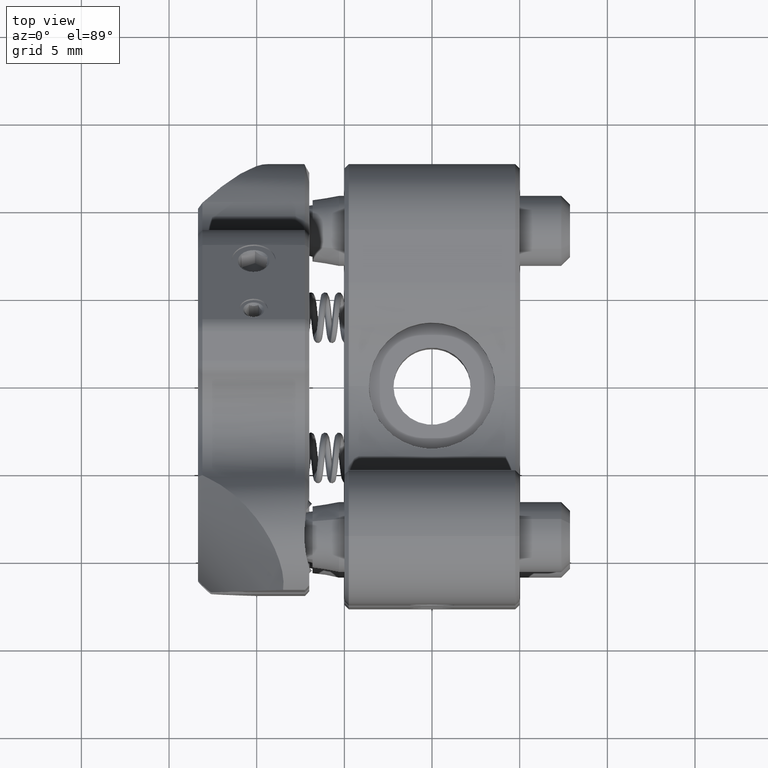
[diagram: clean part render]
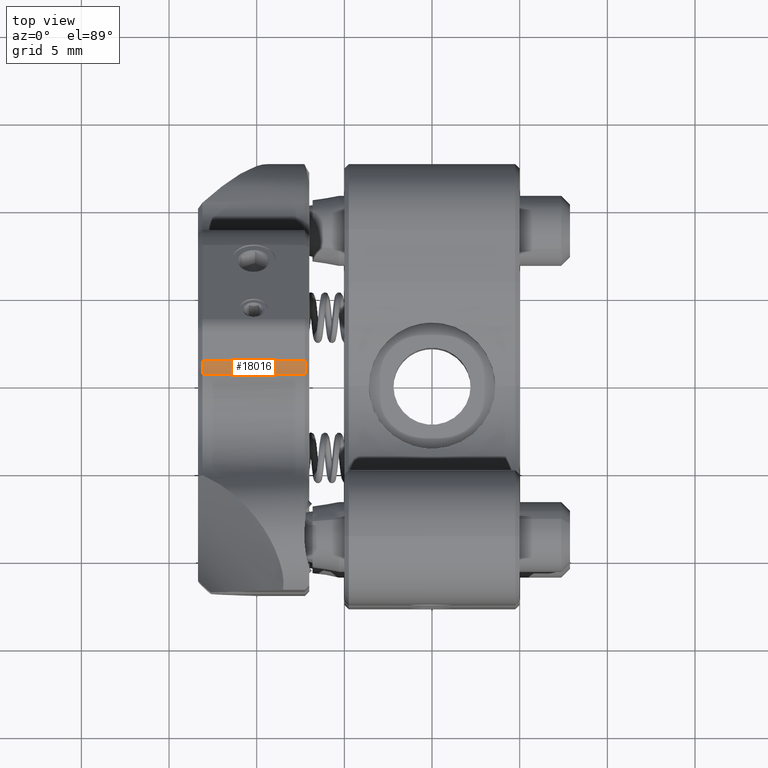
[diagram: same view with one face highlighted and labeled with its STEP entity id]
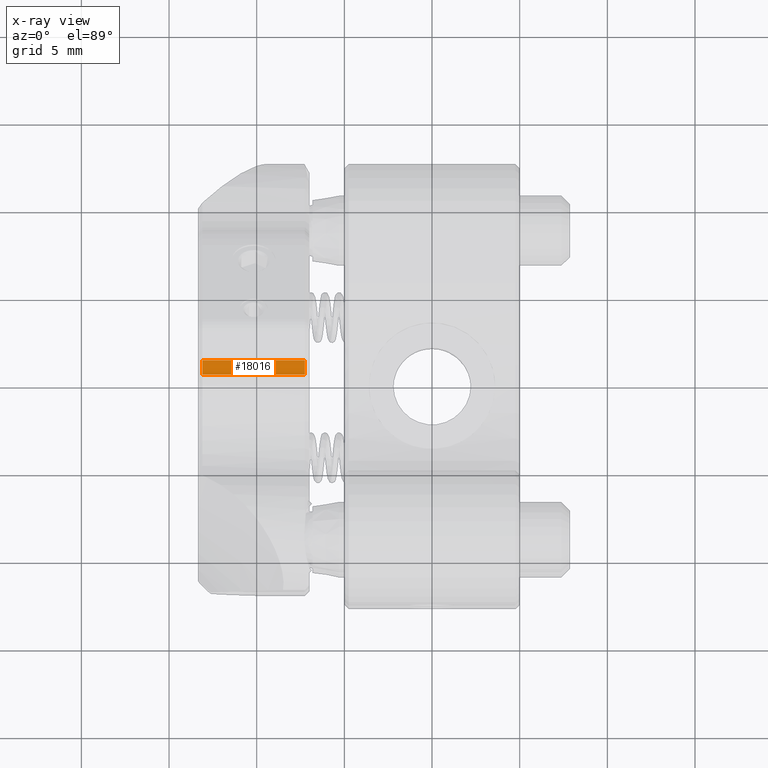
[diagram: x-ray of the same camera — body ghosted, the highlighted face saturated]
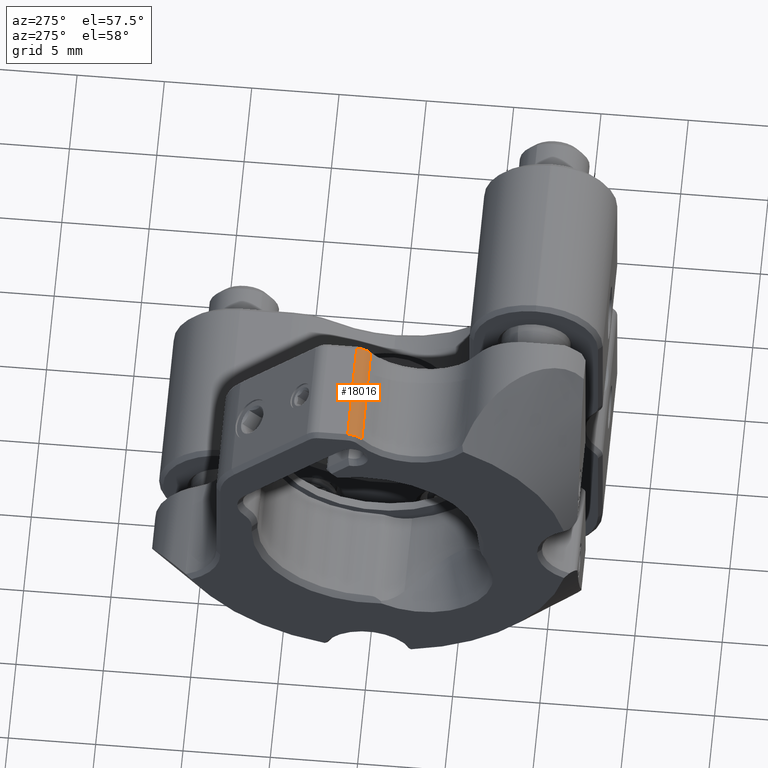
[diagram: same view with one face highlighted and labeled with its STEP entity id]
A machine part, top view. The second image highlights one B-rep face of the part: STEP entity #18016.
The next image is the same camera in x-ray: the body ghosted, the highlighted face saturated — about 0% of this face is hidden behind the body in this view.
A second angle (auxiliary view) of the same face is appended — the face is thin or edge-on in the first view.
In plain terms, the highlighted cylindrical surface (edge-blend (fillet) strip) has radius 1 mm, axis along (-1, 0, 0).
Its self-contained STEP definition (entity closure, byte-faithful):
#675 = EDGE_LOOP ( 'NONE', ( #8236, #47547, #54099, #83795 ) ) ;
#1239 = AXIS2_PLACEMENT_3D ( 'NONE', #54233, #10472, #54555 ) ;
#2218 = AXIS2_PLACEMENT_3D ( 'NONE', #20798, #71953, #70726 ) ;
#8236 = ORIENTED_EDGE ( 'NONE', *, *, #87699, .T. ) ;
#10472 = DIRECTION ( 'NONE',  ( -1.000000000000000000, -0.000000000000000000, -0.000000000000000000 ) ) ;
#10993 = VERTEX_POINT ( 'NONE', #37202 ) ;
#16301 = CIRCLE ( 'NONE', #1239, 1.000000000000000000 ) ;
#16946 = CARTESIAN_POINT ( 'NONE',  ( -7.249999999999993783, 0.3639455986235509699, 10.29171770195363322 ) ) ;
#18015 = CARTESIAN_POINT ( 'NONE',  ( -13.09999999999999432, 0.3639455986235509699, 10.29171770195363322 ) ) ;
#18016 = ADVANCED_FACE ( 'NONE', ( #54381 ), #78318, .T. ) ;
#20798 = CARTESIAN_POINT ( 'NONE',  ( -7.249999999999993783, 1.170090846822884778, 9.699999999999707967 ) ) ;
#20988 = VECTOR ( 'NONE', #34934, 1000.000000000000000 ) ;
#21914 = VERTEX_POINT ( 'NONE', #18015 ) ;
#22172 = LINE ( 'NONE', #85706, #20988 ) ;
#29490 = VECTOR ( 'NONE', #83803, 1000.000000000000000 ) ;
#29696 = DIRECTION ( 'NONE',  ( -1.000000000000000000, 0.000000000000000000, 0.000000000000000000 ) ) ;
#34129 = LINE ( 'NONE', #40684, #29490 ) ;
#34934 = DIRECTION ( 'NONE',  ( 1.000000000000000000, -0.000000000000000000, -0.000000000000000000 ) ) ;
#36171 = CIRCLE ( 'NONE', #2218, 1.000000000000000000 ) ;
#36899 = AXIS2_PLACEMENT_3D ( 'NONE', #67061, #29696, #80812 ) ;
#37202 = CARTESIAN_POINT ( 'NONE',  ( -7.249999999999993783, 1.170090846822884778, 10.69999999999970619 ) ) ;
#40684 = CARTESIAN_POINT ( 'NONE',  ( -7.000000000000000000, 1.170090846822884778, 10.69999999999970619 ) ) ;
#45978 = EDGE_CURVE ( 'NONE', #21914, #71627, #16301, .T. ) ;
#47547 = ORIENTED_EDGE ( 'NONE', *, *, #45978, .F. ) ;
#54099 = ORIENTED_EDGE ( 'NONE', *, *, #64383, .T. ) ;
#54233 = CARTESIAN_POINT ( 'NONE',  ( -13.09999999999999432, 1.170090846822884778, 9.699999999999707967 ) ) ;
#54381 = FACE_OUTER_BOUND ( 'NONE', #675, .T. ) ;
#54555 = DIRECTION ( 'NONE',  ( 0.000000000000000000, 1.000000000000000000, -1.734723475976807094E-15 ) ) ;
#55438 = CARTESIAN_POINT ( 'NONE',  ( -13.09999999999999432, 1.170090846822884778, 10.69999999999970619 ) ) ;
#64383 = EDGE_CURVE ( 'NONE', #21914, #70626, #22172, .T. ) ;
#67061 = CARTESIAN_POINT ( 'NONE',  ( -7.000000000000000000, 1.170090846822884778, 9.699999999999707967 ) ) ;
#70626 = VERTEX_POINT ( 'NONE', #16946 ) ;
#70726 = DIRECTION ( 'NONE',  ( 0.000000000000000000, 1.000000000000000000, 0.000000000000000000 ) ) ;
#71627 = VERTEX_POINT ( 'NONE', #55438 ) ;
#71953 = DIRECTION ( 'NONE',  ( 1.000000000000000000, 0.000000000000000000, 0.000000000000000000 ) ) ;
#73167 = EDGE_CURVE ( 'NONE', #10993, #70626, #36171, .T. ) ;
#78318 = CYLINDRICAL_SURFACE ( 'NONE', #36899, 1.000000000000000000 ) ;
#80812 = DIRECTION ( 'NONE',  ( 0.000000000000000000, 1.000000000000000000, 0.000000000000000000 ) ) ;
#83795 = ORIENTED_EDGE ( 'NONE', *, *, #73167, .F. ) ;
#83803 = DIRECTION ( 'NONE',  ( -1.000000000000000000, 0.000000000000000000, 0.000000000000000000 ) ) ;
#85706 = CARTESIAN_POINT ( 'NONE',  ( -7.000000000000000000, 0.3639455986235509699, 10.29171770195363322 ) ) ;
#87699 = EDGE_CURVE ( 'NONE', #10993, #71627, #34129, .T. ) ;